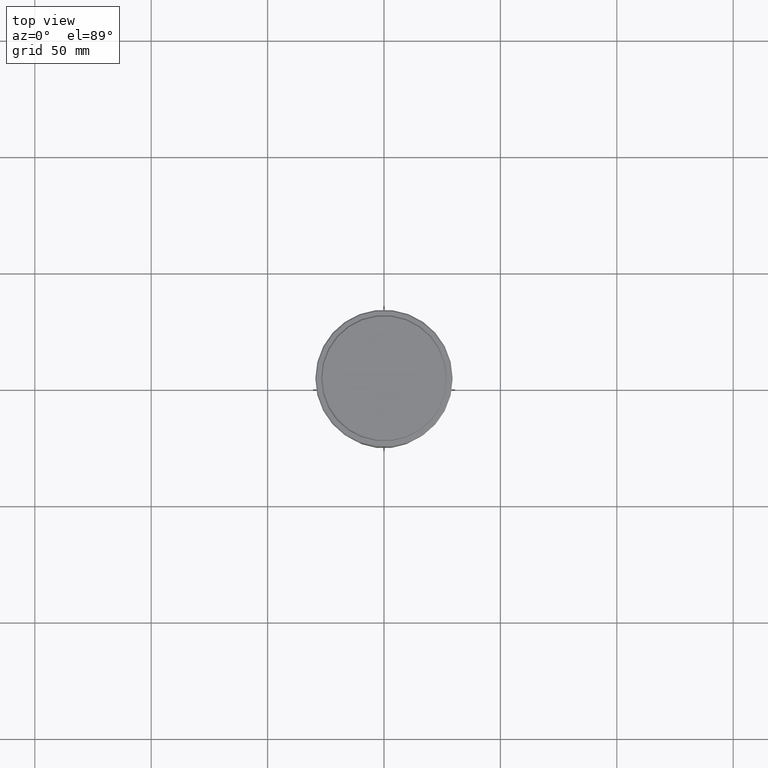
[diagram: clean part render]
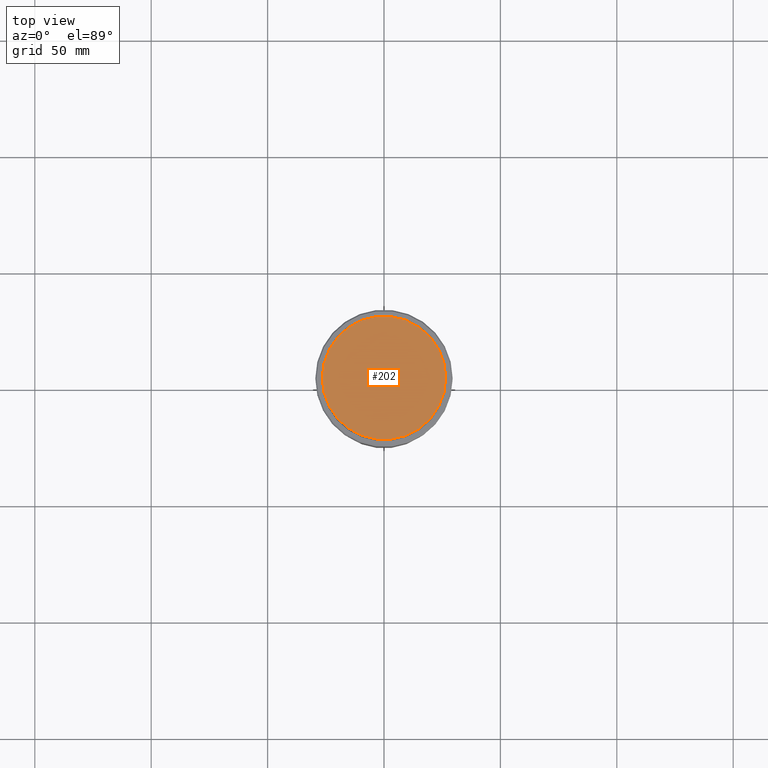
[diagram: same view with one face highlighted and labeled with its STEP entity id]
A machine part, top view. The second image highlights one B-rep face of the part: STEP entity #202.
In plain terms, the highlighted planar face has unit normal (0, -0, 1).
Its self-contained STEP definition (entity closure, byte-faithful):
#4 = CIRCLE ( 'NONE', #1243, 26.50000000000002487 ) ;
#6 = VERTEX_POINT ( 'NONE', #656 ) ;
#59 = ORIENTED_EDGE ( 'NONE', *, *, #1378, .T. ) ;
#171 = ORIENTED_EDGE ( 'NONE', *, *, #1268, .T. ) ;
#202 = ADVANCED_FACE ( 'NONE', ( #867 ), #1199, .T. ) ;
#302 = CARTESIAN_POINT ( 'NONE',  ( 26.50000000000002487, 3.275930187719171524E-15, 0.000000000000000000 ) ) ;
#417 = DIRECTION ( 'NONE',  ( 0.000000000000000000, -0.000000000000000000, 1.000000000000000000 ) ) ;
#656 = CARTESIAN_POINT ( 'NONE',  ( -26.50000000000002487, 0.000000000000000000, 0.000000000000000000 ) ) ;
#694 = AXIS2_PLACEMENT_3D ( 'NONE', #1403, #417, #1089 ) ;
#702 = AXIS2_PLACEMENT_3D ( 'NONE', #873, #996, #1090 ) ;
#785 = VERTEX_POINT ( 'NONE', #302 ) ;
#867 = FACE_OUTER_BOUND ( 'NONE', #1401, .T. ) ;
#873 = CARTESIAN_POINT ( 'NONE',  ( 0.000000000000000000, 0.000000000000000000, 0.000000000000000000 ) ) ;
#945 = DIRECTION ( 'NONE',  ( -0.000000000000000000, -0.000000000000000000, 1.000000000000000000 ) ) ;
#951 = DIRECTION ( 'NONE',  ( 1.000000000000000000, 0.000000000000000000, 0.000000000000000000 ) ) ;
#996 = DIRECTION ( 'NONE',  ( -0.000000000000000000, -0.000000000000000000, 1.000000000000000000 ) ) ;
#1071 = CARTESIAN_POINT ( 'NONE',  ( 0.000000000000000000, 0.000000000000000000, 0.000000000000000000 ) ) ;
#1089 = DIRECTION ( 'NONE',  ( 1.000000000000000000, 0.000000000000000000, 0.000000000000000000 ) ) ;
#1090 = DIRECTION ( 'NONE',  ( 1.000000000000000000, 0.000000000000000000, 0.000000000000000000 ) ) ;
#1105 = CIRCLE ( 'NONE', #702, 26.50000000000002487 ) ;
#1199 = PLANE ( 'NONE',  #694 ) ;
#1243 = AXIS2_PLACEMENT_3D ( 'NONE', #1071, #945, #951 ) ;
#1268 = EDGE_CURVE ( 'NONE', #785, #6, #4, .T. ) ;
#1378 = EDGE_CURVE ( 'NONE', #6, #785, #1105, .T. ) ;
#1401 = EDGE_LOOP ( 'NONE', ( #59, #171 ) ) ;
#1403 = CARTESIAN_POINT ( 'NONE',  ( 0.000000000000000000, 0.000000000000000000, 0.000000000000000000 ) ) ;